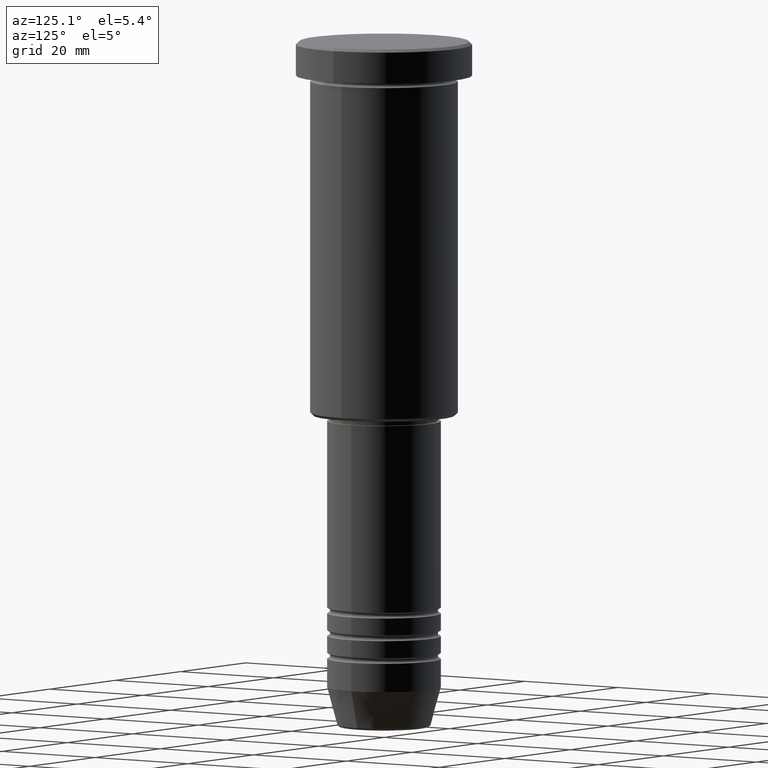
[diagram: clean part render]
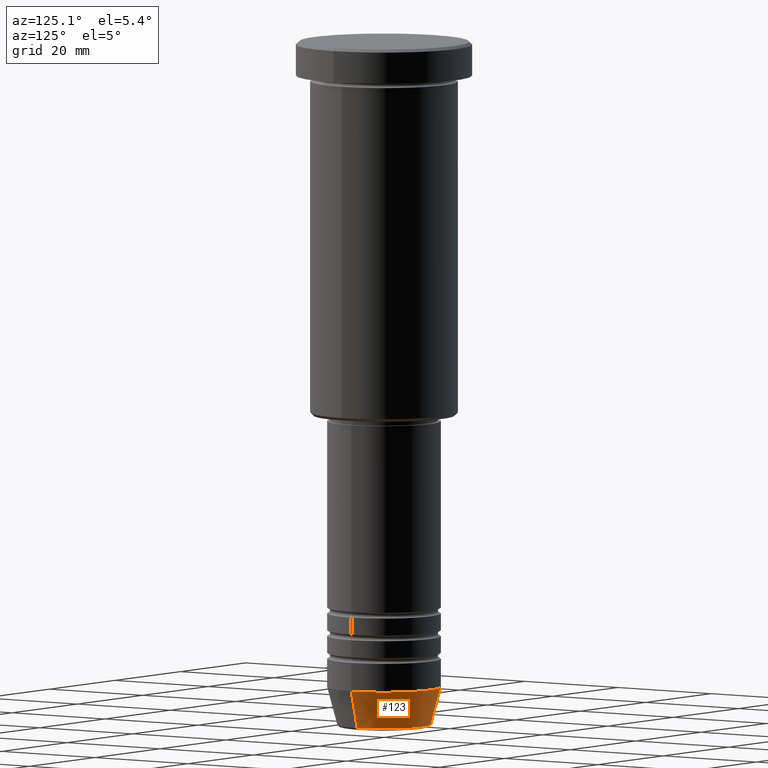
[diagram: same view with one face highlighted and labeled with its STEP entity id]
A machine part, auxiliary view. The second image highlights one B-rep face of the part: STEP entity #123.
In plain terms, the highlighted conical surface has half-angle 15 deg.
Its self-contained STEP definition (entity closure, byte-faithful):
#23 = VECTOR ( 'NONE', #945, 1000.000000000000114 ) ;
#69 = CARTESIAN_POINT ( 'NONE',  ( 0.000000000000000000, 0.000000000000000000, -114.0000000000000000 ) ) ;
#76 = DIRECTION ( 'NONE',  ( -0.000000000000000000, -0.000000000000000000, 1.000000000000000000 ) ) ;
#89 = VERTEX_POINT ( 'NONE', #300 ) ;
#104 = AXIS2_PLACEMENT_3D ( 'NONE', #486, #1121, #115 ) ;
#111 = ORIENTED_EDGE ( 'NONE', *, *, #677, .T. ) ;
#115 = DIRECTION ( 'NONE',  ( 1.000000000000000000, 0.000000000000000000, 0.000000000000000000 ) ) ;
#117 = CARTESIAN_POINT ( 'NONE',  ( 8.223655072137191269, 0.000000000000000000, -120.6294095225512564 ) ) ;
#122 = AXIS2_PLACEMENT_3D ( 'NONE', #69, #76, #1083 ) ;
#123 = ADVANCED_FACE ( 'NONE', ( #882 ), #1122, .T. ) ;
#221 = DIRECTION ( 'NONE',  ( 1.000000000000000000, 0.000000000000000000, 0.000000000000000000 ) ) ;
#262 = VECTOR ( 'NONE', #705, 1000.000000000000114 ) ;
#283 = LINE ( 'NONE', #1017, #23 ) ;
#300 = CARTESIAN_POINT ( 'NONE',  ( 10.00000000000000000, 0.000000000000000000, -114.0000000000000000 ) ) ;
#336 = EDGE_CURVE ( 'NONE', #575, #89, #1154, .T. ) ;
#370 = EDGE_CURVE ( 'NONE', #575, #633, #546, .T. ) ;
#399 = ORIENTED_EDGE ( 'NONE', *, *, #336, .F. ) ;
#446 = EDGE_LOOP ( 'NONE', ( #658, #111, #1156, #399 ) ) ;
#474 = CARTESIAN_POINT ( 'NONE',  ( 0.000000000000000000, 0.000000000000000000, -120.6294095225512564 ) ) ;
#476 = CARTESIAN_POINT ( 'NONE',  ( 10.00000000000000000, 0.000000000000000000, -114.0000000000000000 ) ) ;
#486 = CARTESIAN_POINT ( 'NONE',  ( 0.000000000000000000, 0.000000000000000000, -114.0000000000000000 ) ) ;
#546 = CIRCLE ( 'NONE', #567, 8.223655072137191269 ) ;
#567 = AXIS2_PLACEMENT_3D ( 'NONE', #474, #1129, #221 ) ;
#575 = VERTEX_POINT ( 'NONE', #117 ) ;
#585 = CIRCLE ( 'NONE', #104, 10.00000000000000000 ) ;
#633 = VERTEX_POINT ( 'NONE', #860 ) ;
#658 = ORIENTED_EDGE ( 'NONE', *, *, #370, .T. ) ;
#677 = EDGE_CURVE ( 'NONE', #633, #1000, #283, .T. ) ;
#705 = DIRECTION ( 'NONE',  ( 0.2588190451025211281, 0.000000000000000000, 0.9659258262890680902 ) ) ;
#766 = EDGE_CURVE ( 'NONE', #89, #1000, #585, .T. ) ;
#782 = CARTESIAN_POINT ( 'NONE',  ( -10.00000000000000000, 1.224646799147353256E-15, -114.0000000000000000 ) ) ;
#860 = CARTESIAN_POINT ( 'NONE',  ( -8.223655072137191269, 1.115877042642912054E-15, -120.6294095225512564 ) ) ;
#882 = FACE_OUTER_BOUND ( 'NONE', #446, .T. ) ;
#945 = DIRECTION ( 'NONE',  ( -0.2588190451025211281, 3.169619151431769872E-17, 0.9659258262890680902 ) ) ;
#1000 = VERTEX_POINT ( 'NONE', #782 ) ;
#1017 = CARTESIAN_POINT ( 'NONE',  ( -10.00000000000000000, 1.224646799147353256E-15, -114.0000000000000000 ) ) ;
#1083 = DIRECTION ( 'NONE',  ( 1.000000000000000000, 0.000000000000000000, 0.000000000000000000 ) ) ;
#1121 = DIRECTION ( 'NONE',  ( -0.000000000000000000, -0.000000000000000000, 1.000000000000000000 ) ) ;
#1122 = CONICAL_SURFACE ( 'NONE', #122, 10.00000000000000000, 0.2617993877991498519 ) ;
#1129 = DIRECTION ( 'NONE',  ( -0.000000000000000000, -0.000000000000000000, 1.000000000000000000 ) ) ;
#1154 = LINE ( 'NONE', #476, #262 ) ;
#1156 = ORIENTED_EDGE ( 'NONE', *, *, #766, .F. ) ;